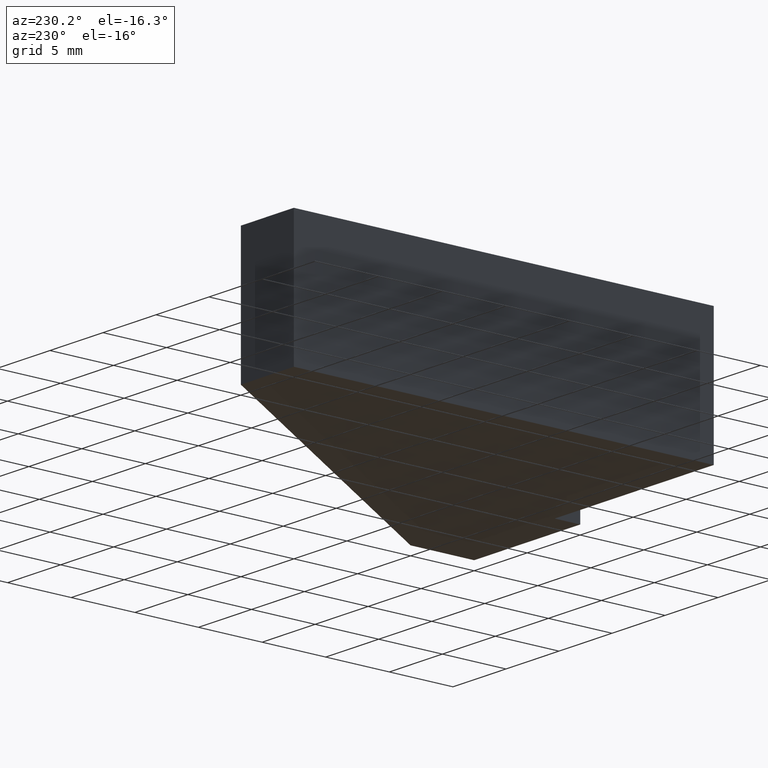
[diagram: clean part render]
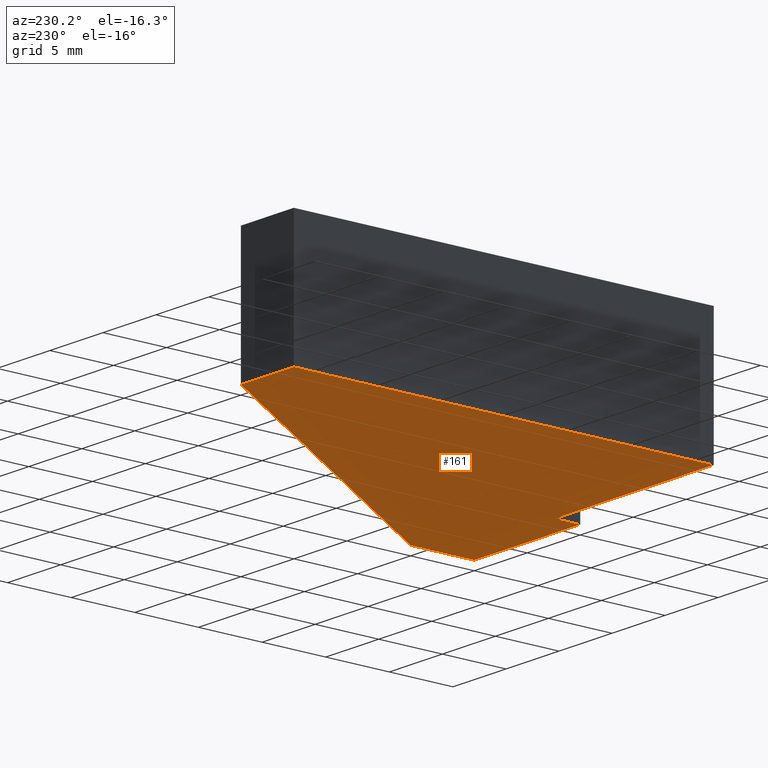
[diagram: same view with one face highlighted and labeled with its STEP entity id]
A machine part, auxiliary view. The second image highlights one B-rep face of the part: STEP entity #161.
In plain terms, the highlighted planar face has unit normal (0, 0, 1).
Its self-contained STEP definition (entity closure, byte-faithful):
#15=FACE_OUTER_BOUND('',#24,.T.);
#24=EDGE_LOOP('',(#110,#111,#112,#113,#114,#115,#116));
#33=LINE('',#244,#54);
#34=LINE('',#246,#55);
#35=LINE('',#248,#56);
#36=LINE('',#250,#57);
#37=LINE('',#252,#58);
#38=LINE('',#254,#59);
#39=LINE('',#255,#60);
#54=VECTOR('',#203,10.);
#55=VECTOR('',#204,10.);
#56=VECTOR('',#205,10.);
#57=VECTOR('',#206,10.);
#58=VECTOR('',#207,10.);
#59=VECTOR('',#208,10.);
#60=VECTOR('',#209,10.);
#75=VERTEX_POINT('',#242);
#76=VERTEX_POINT('',#243);
#77=VERTEX_POINT('',#245);
#78=VERTEX_POINT('',#247);
#79=VERTEX_POINT('',#249);
#80=VERTEX_POINT('',#251);
#81=VERTEX_POINT('',#253);
#89=EDGE_CURVE('',#75,#76,#33,.T.);
#90=EDGE_CURVE('',#77,#75,#34,.T.);
#91=EDGE_CURVE('',#78,#77,#35,.T.);
#92=EDGE_CURVE('',#79,#78,#36,.T.);
#93=EDGE_CURVE('',#80,#79,#37,.T.);
#94=EDGE_CURVE('',#81,#80,#38,.T.);
#95=EDGE_CURVE('',#76,#81,#39,.T.);
#110=ORIENTED_EDGE('',*,*,#89,.F.);
#111=ORIENTED_EDGE('',*,*,#90,.F.);
#112=ORIENTED_EDGE('',*,*,#91,.F.);
#113=ORIENTED_EDGE('',*,*,#92,.F.);
#114=ORIENTED_EDGE('',*,*,#93,.F.);
#115=ORIENTED_EDGE('',*,*,#94,.F.);
#116=ORIENTED_EDGE('',*,*,#95,.F.);
#152=PLANE('',#190);
#161=ADVANCED_FACE('',(#15),#152,.F.);
#190=AXIS2_PLACEMENT_3D('',#241,#201,#202);
#201=DIRECTION('center_axis',(0.,0.,1.));
#202=DIRECTION('ref_axis',(1.,0.,0.));
#203=DIRECTION('',(-1.83697019872103E-16,1.,0.));
#204=DIRECTION('',(1.,-1.82783065129353E-17,0.));
#205=DIRECTION('',(0.,-1.,0.));
#206=DIRECTION('',(1.,2.59052039079203E-16,0.));
#207=DIRECTION('',(0.,-1.,0.));
#208=DIRECTION('',(-1.,8.88178419700125E-16,0.));
#209=DIRECTION('',(-0.554700196225229,0.832050294337844,0.));
#241=CARTESIAN_POINT('Origin',(-15.3745438138487,14.6254561861513,-5.));
#242=CARTESIAN_POINT('',(0.,0.,-5.));
#243=CARTESIAN_POINT('',(-9.18485099360515E-16,5.,-5.));
#244=CARTESIAN_POINT('',(-9.18485099360515E-16,5.,-5.));
#245=CARTESIAN_POINT('',(-10.,1.82783065129353E-16,-5.));
#246=CARTESIAN_POINT('',(0.,0.,-5.));
#247=CARTESIAN_POINT('',(-10.,2.,-5.));
#248=CARTESIAN_POINT('',(-10.,2.77555756156289E-16,-5.));
#249=CARTESIAN_POINT('',(-25.,2.,-5.));
#250=CARTESIAN_POINT('',(-10.,2.,-5.));
#251=CARTESIAN_POINT('',(-25.,35.,-5.));
#252=CARTESIAN_POINT('',(-25.,2.,-5.));
#253=CARTESIAN_POINT('',(-20.,35.,-5.));
#254=CARTESIAN_POINT('',(-25.,35.,-5.));
#255=CARTESIAN_POINT('',(-20.,35.,-5.));